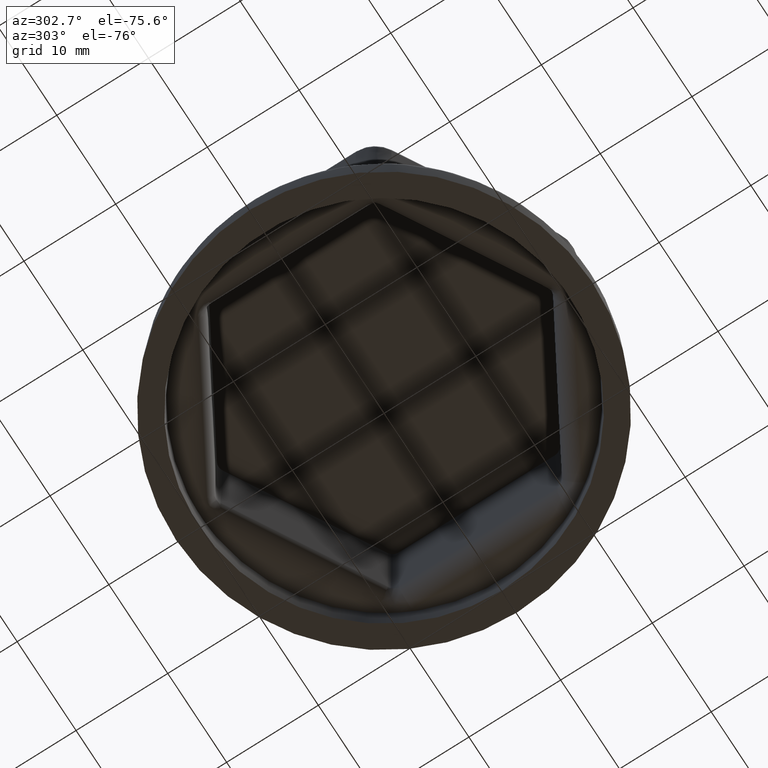
[diagram: clean part render]
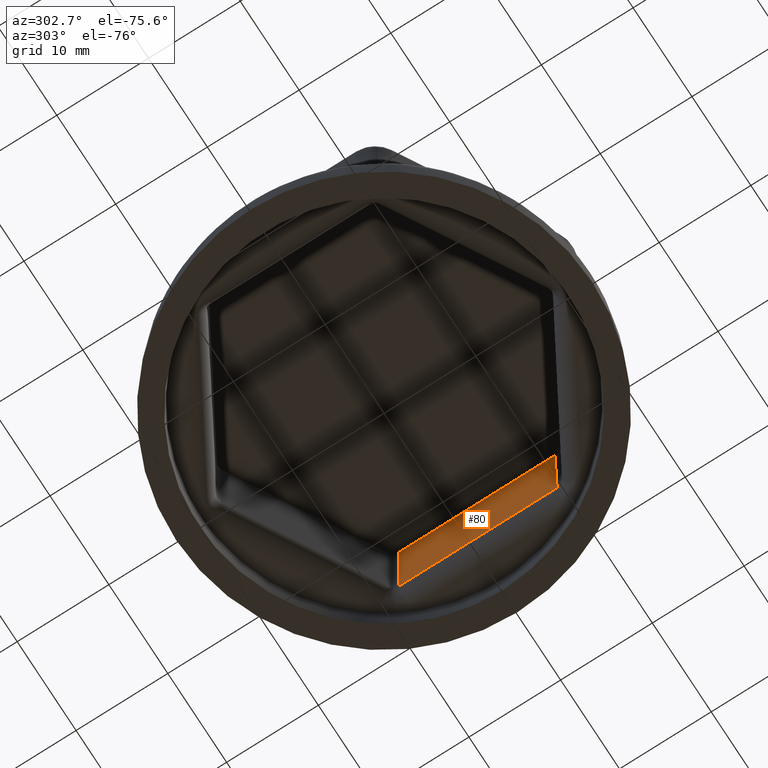
[diagram: same view with one face highlighted and labeled with its STEP entity id]
A machine part, auxiliary view. The second image highlights one B-rep face of the part: STEP entity #80.
In plain terms, the highlighted planar face has unit normal (0.9998, -0, 0.0175).
Its self-contained STEP definition (entity closure, byte-faithful):
#80 = ADVANCED_FACE( '', ( #217 ), #218, .F. );
#217 = FACE_OUTER_BOUND( '', #489, .T. );
#218 = PLANE( '', #490 );
#489 = EDGE_LOOP( '', ( #5801, #5802, #5803, #5804, #5805, #5806 ) );
#490 = AXIS2_PLACEMENT_3D( '', #5807, #5808, #5809 );
#5801 = ORIENTED_EDGE( '', *, *, #6542, .F. );
#5802 = ORIENTED_EDGE( '', *, *, #6528, .T. );
#5803 = ORIENTED_EDGE( '', *, *, #6543, .F. );
#5804 = ORIENTED_EDGE( '', *, *, #6544, .F. );
#5805 = ORIENTED_EDGE( '', *, *, #6545, .F. );
#5806 = ORIENTED_EDGE( '', *, *, #6546, .F. );
#5807 = CARTESIAN_POINT( '', ( 16.0000000000000, 9.23760430703401, 3.30000000000000 ) );
#5808 = DIRECTION( '', ( 0.999847695156391, -3.33016179684306E-016, 0.0174524064372835 ) );
#5809 = DIRECTION( '', ( 0.0174524064372835, 0.000000000000000, -0.999847695156391 ) );
#6528 = EDGE_CURVE( '', #6854, #6852, #6855, .F. );
#6542 = EDGE_CURVE( '', #6854, #6879, #6880, .F. );
#6543 = EDGE_CURVE( '', #6881, #6852, #6882, .T. );
#6544 = EDGE_CURVE( '', #6883, #6881, #6884, .T. );
#6545 = EDGE_CURVE( '', #6885, #6883, #6886, .T. );
#6546 = EDGE_CURVE( '', #6879, #6885, #6887, .T. );
#6852 = VERTEX_POINT( '', #7476 );
#6854 = VERTEX_POINT( '', #7478 );
#6855 = LINE( '', #7479, #7480 );
#6879 = VERTEX_POINT( '', #7531 );
#6880 = LINE( '', #7532, #7533 );
#6881 = VERTEX_POINT( '', #7534 );
#6882 = LINE( '', #7535, #7536 );
#6883 = VERTEX_POINT( '', #7537 );
#6884 = B_SPLINE_CURVE_WITH_KNOTS( '', 3, ( #7538, #7539, #7540, #7541, #7542, #7543 ), .UNSPECIFIED., .F., .F., ( 4, 2, 4 ), ( 0.000000000000000, 0.000466255855493815, 0.000932511710987629 ), .UNSPECIFIED. );
#6885 = VERTEX_POINT( '', #7544 );
#6886 = LINE( '', #7545, #7546 );
#6887 = B_SPLINE_CURVE_WITH_KNOTS( '', 3, ( #7547, #7548, #7549, #7550, #7551, #7552 ), .UNSPECIFIED., .F., .F., ( 4, 2, 4 ), ( 0.000000000000000, 0.000466255855493817, 0.000932511710987633 ), .UNSPECIFIED. );
#7476 = CARTESIAN_POINT( '', ( 15.7556290910050, 8.51925436099644, 17.3000000000000 ) );
#7478 = CARTESIAN_POINT( '', ( 15.7556290910050, -8.51925436099645, 17.3000000000000 ) );
#7479 = CARTESIAN_POINT( '', ( 15.7556290910049, -27.7128129211020, 17.3000000000000 ) );
#7480 = VECTOR( '', #9765, 1000.00000000000 );
#7531 = CARTESIAN_POINT( '', ( 15.9576246532980, -8.63587655326144, 5.72768198664934 ) );
#7532 = CARTESIAN_POINT( '', ( 15.9968529103223, -8.65852499801429, 3.48029664688235 ) );
#7533 = VECTOR( '', #9779, 1000.00000000000 );
#7534 = CARTESIAN_POINT( '', ( 15.9576246532980, 8.63587655326142, 5.72768198664935 ) );
#7535 = CARTESIAN_POINT( '', ( 16.0001015030613, 8.66040057390662, 3.29418489351094 ) );
#7536 = VECTOR( '', #9780, 1000.00000000000 );
#7537 = CARTESIAN_POINT( '', ( 15.9571239198983, 7.70380633241779, 5.75636898390679 ) );
#7538 = CARTESIAN_POINT( '', ( 15.9571239198983, 7.70380633241779, 5.75636898390679 ) );
#7539 = CARTESIAN_POINT( '', ( 15.9571239198983, 7.85929856745956, 5.75636898390679 ) );
#7540 = CARTESIAN_POINT( '', ( 15.9571614252130, 8.01472465093902, 5.75422030586407 ) );
#7541 = CARTESIAN_POINT( '', ( 15.9573238853856, 8.32542257512097, 5.74491296881032 ) );
#7542 = CARTESIAN_POINT( '', ( 15.9574488137953, 8.48069446247244, 5.73775582501200 ) );
#7543 = CARTESIAN_POINT( '', ( 15.9576246532980, 8.63587655326142, 5.72768198664946 ) );
#7544 = CARTESIAN_POINT( '', ( 15.9571239198982, -7.70380633241780, 5.75636898390679 ) );
#7545 = CARTESIAN_POINT( '', ( 15.9571239198983, 9.23760430703401, 5.75636898390679 ) );
#7546 = VECTOR( '', #9781, 1000.00000000000 );
#7547 = CARTESIAN_POINT( '', ( 15.9576246532980, -8.63587655326144, 5.72768198664934 ) );
#7548 = CARTESIAN_POINT( '', ( 15.9574488137953, -8.48069446247246, 5.73775582501189 ) );
#7549 = CARTESIAN_POINT( '', ( 15.9573238853856, -8.32542257512098, 5.74491296881033 ) );
#7550 = CARTESIAN_POINT( '', ( 15.9571614252130, -8.01472465093904, 5.75422030586407 ) );
#7551 = CARTESIAN_POINT( '', ( 15.9571239198982, -7.85929856745957, 5.75636898390679 ) );
#7552 = CARTESIAN_POINT( '', ( 15.9571239198982, -7.70380633241780, 5.75636898390679 ) );
#9765 = DIRECTION( '', ( -3.33066907387547E-016, -1.00000000000000, 0.000000000000000 ) );
#9779 = DIRECTION( '', ( -0.0174515205435363, 0.0100756400835790, 0.999796942337605 ) );
#9780 = DIRECTION( '', ( -0.0174515205435363, -0.0100756400835790, 0.999796942337605 ) );
#9781 = DIRECTION( '', ( 3.33066907387547E-016, 1.00000000000000, -7.70371977754894E-034 ) );